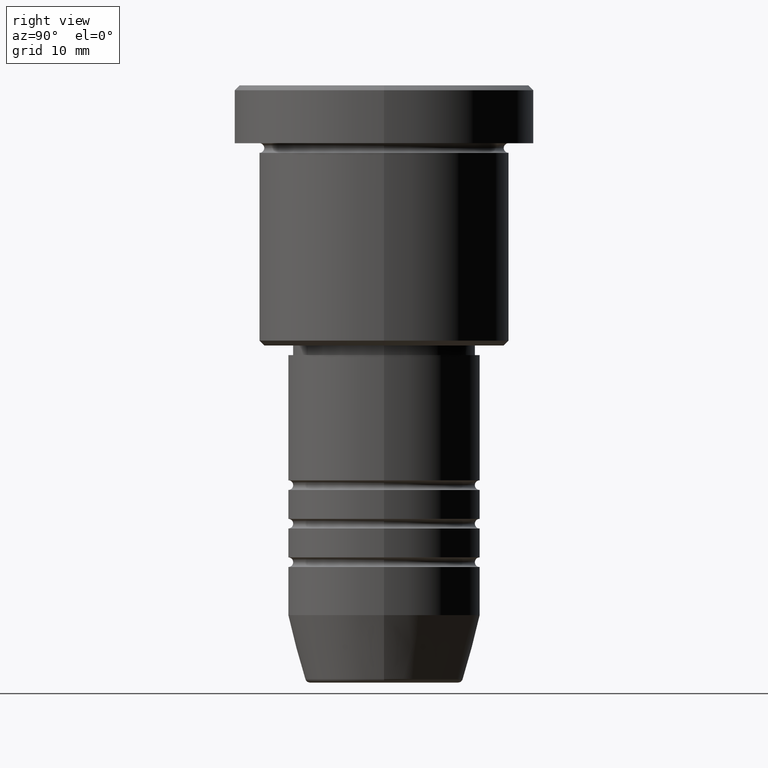
[diagram: clean part render]
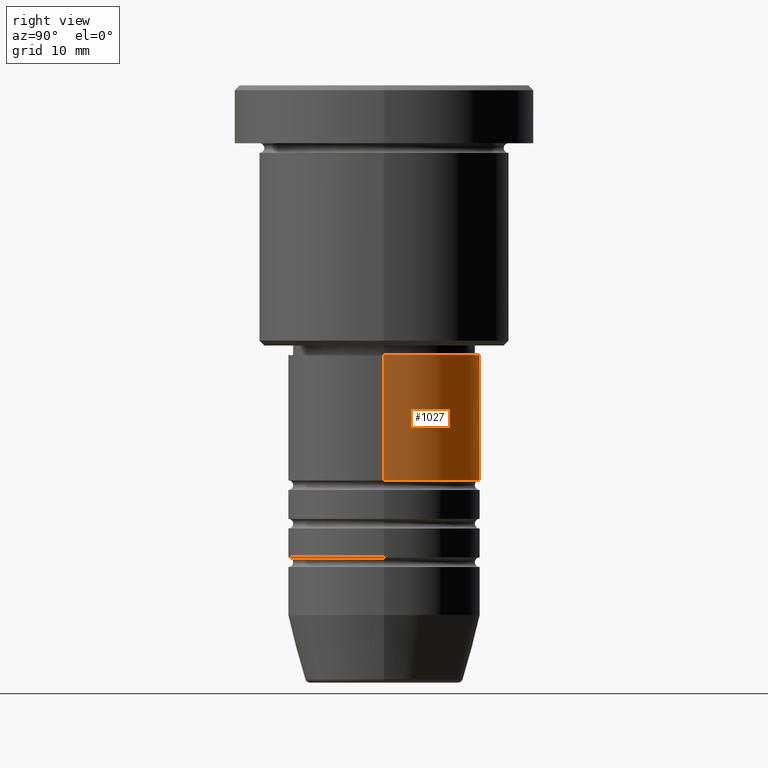
[diagram: same view with one face highlighted and labeled with its STEP entity id]
A machine part, right view. The second image highlights one B-rep face of the part: STEP entity #1027.
In plain terms, the highlighted cylindrical surface (partial cylindrical patch) has radius 10 mm, axis along (-0, -0, 1).
Its self-contained STEP definition (entity closure, byte-faithful):
#11 = EDGE_LOOP ( 'NONE', ( #104, #494, #143, #217 ) ) ;
#67 = DIRECTION ( 'NONE',  ( -0.000000000000000000, -0.000000000000000000, 1.000000000000000000 ) ) ;
#94 = CARTESIAN_POINT ( 'NONE',  ( -10.00000000000000000, 1.224646799147353256E-15, 0.000000000000000000 ) ) ;
#104 = ORIENTED_EDGE ( 'NONE', *, *, #605, .T. ) ;
#114 = CIRCLE ( 'NONE', #270, 10.00000000000000178 ) ;
#122 = DIRECTION ( 'NONE',  ( 1.000000000000000000, 0.000000000000000000, 0.000000000000000000 ) ) ;
#133 = CARTESIAN_POINT ( 'NONE',  ( 0.000000000000000000, 0.000000000000000000, -27.99999999999999645 ) ) ;
#142 = CARTESIAN_POINT ( 'NONE',  ( 0.000000000000000000, 0.000000000000000000, -40.99999999999989342 ) ) ;
#143 = ORIENTED_EDGE ( 'NONE', *, *, #1021, .F. ) ;
#177 = VECTOR ( 'NONE', #933, 1000.000000000000000 ) ;
#193 = AXIS2_PLACEMENT_3D ( 'NONE', #133, #763, #215 ) ;
#211 = CARTESIAN_POINT ( 'NONE',  ( 10.00000000000000178, 0.000000000000000000, -40.99999999999989342 ) ) ;
#215 = DIRECTION ( 'NONE',  ( 1.000000000000000000, 0.000000000000000000, 0.000000000000000000 ) ) ;
#217 = ORIENTED_EDGE ( 'NONE', *, *, #1009, .F. ) ;
#228 = DIRECTION ( 'NONE',  ( -0.000000000000000000, -0.000000000000000000, 1.000000000000000000 ) ) ;
#270 = AXIS2_PLACEMENT_3D ( 'NONE', #142, #67, #802 ) ;
#285 = LINE ( 'NONE', #756, #924 ) ;
#370 = VERTEX_POINT ( 'NONE', #804 ) ;
#494 = ORIENTED_EDGE ( 'NONE', *, *, #930, .T. ) ;
#588 = FACE_OUTER_BOUND ( 'NONE', #11, .T. ) ;
#605 = EDGE_CURVE ( 'NONE', #1088, #799, #114, .T. ) ;
#634 = AXIS2_PLACEMENT_3D ( 'NONE', #962, #681, #122 ) ;
#681 = DIRECTION ( 'NONE',  ( -0.000000000000000000, -0.000000000000000000, 1.000000000000000000 ) ) ;
#756 = CARTESIAN_POINT ( 'NONE',  ( 10.00000000000000000, 0.000000000000000000, 0.000000000000000000 ) ) ;
#763 = DIRECTION ( 'NONE',  ( -0.000000000000000000, -0.000000000000000000, 1.000000000000000000 ) ) ;
#799 = VERTEX_POINT ( 'NONE', #900 ) ;
#802 = DIRECTION ( 'NONE',  ( 1.000000000000000000, 0.000000000000000000, 0.000000000000000000 ) ) ;
#804 = CARTESIAN_POINT ( 'NONE',  ( 9.999999999999998224, 0.000000000000000000, -27.99999999999999645 ) ) ;
#868 = VERTEX_POINT ( 'NONE', #1091 ) ;
#885 = CIRCLE ( 'NONE', #193, 9.999999999999998224 ) ;
#900 = CARTESIAN_POINT ( 'NONE',  ( -10.00000000000000178, 1.224646799147353454E-15, -40.99999999999989342 ) ) ;
#924 = VECTOR ( 'NONE', #228, 1000.000000000000000 ) ;
#930 = EDGE_CURVE ( 'NONE', #799, #868, #1025, .T. ) ;
#933 = DIRECTION ( 'NONE',  ( -0.000000000000000000, -0.000000000000000000, 1.000000000000000000 ) ) ;
#962 = CARTESIAN_POINT ( 'NONE',  ( 0.000000000000000000, 0.000000000000000000, 0.000000000000000000 ) ) ;
#1009 = EDGE_CURVE ( 'NONE', #1088, #370, #285, .T. ) ;
#1021 = EDGE_CURVE ( 'NONE', #370, #868, #885, .T. ) ;
#1025 = LINE ( 'NONE', #94, #177 ) ;
#1027 = ADVANCED_FACE ( 'NONE', ( #588 ), #1119, .T. ) ;
#1088 = VERTEX_POINT ( 'NONE', #211 ) ;
#1091 = CARTESIAN_POINT ( 'NONE',  ( -9.999999999999998224, 1.224646799147353256E-15, -27.99999999999999645 ) ) ;
#1119 = CYLINDRICAL_SURFACE ( 'NONE', #634, 10.00000000000000000 ) ;